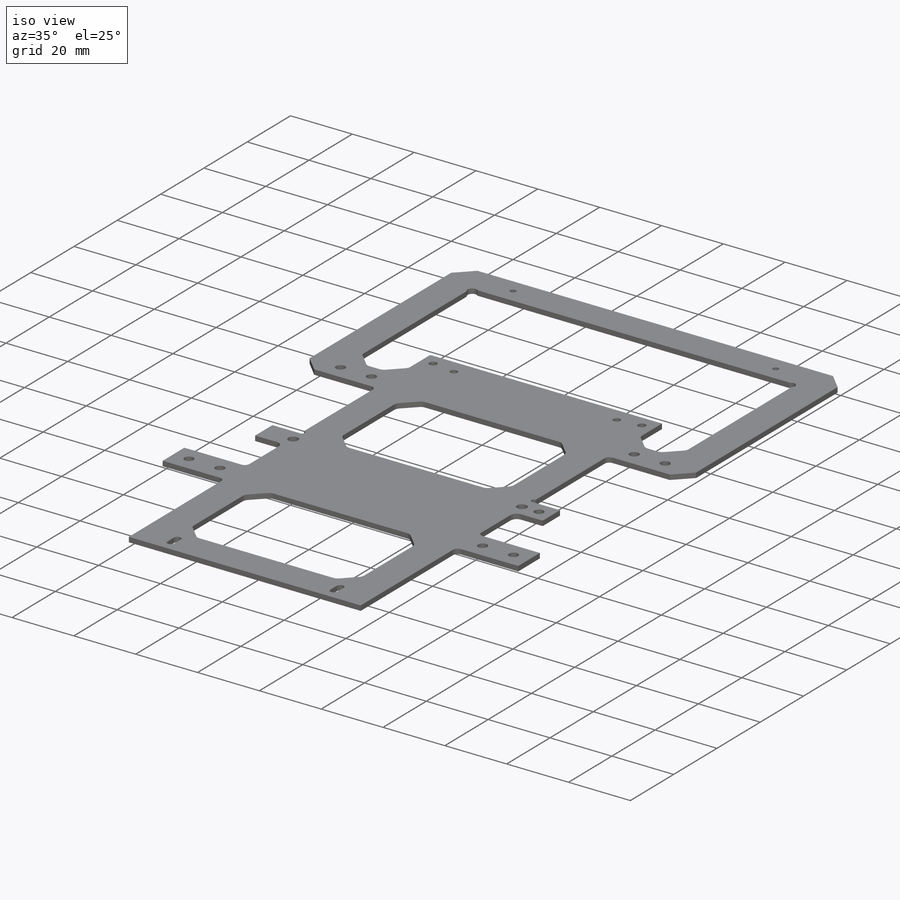
[diagram: iso view]
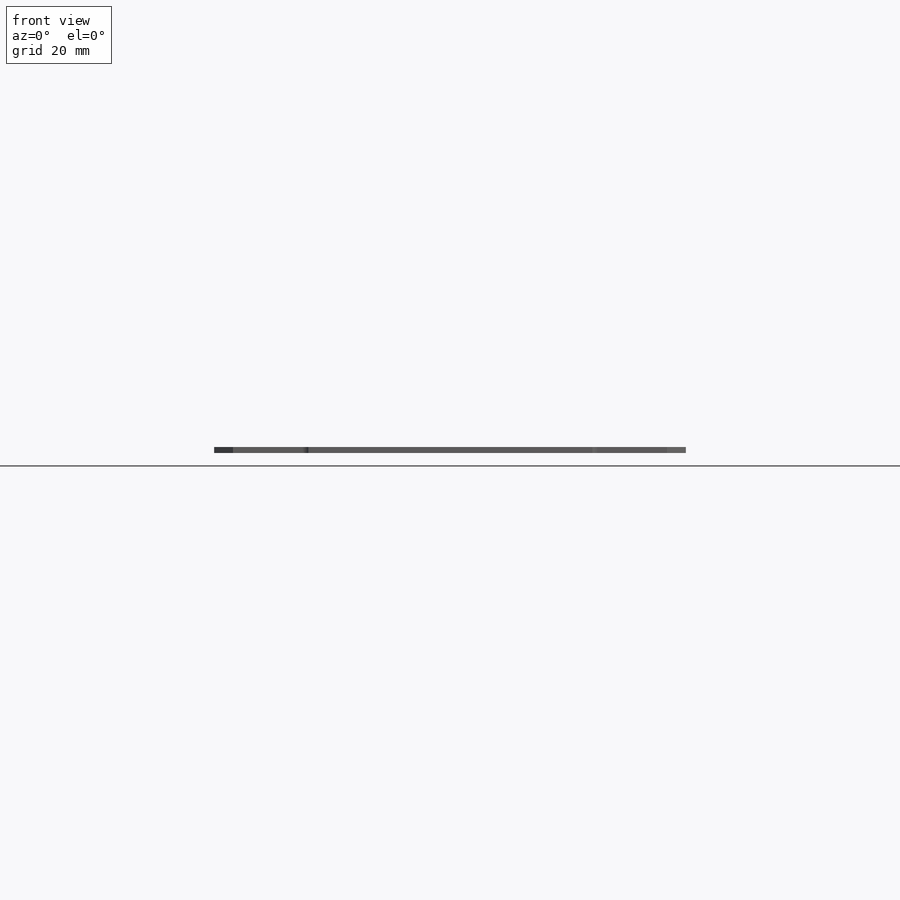
[diagram: front view]
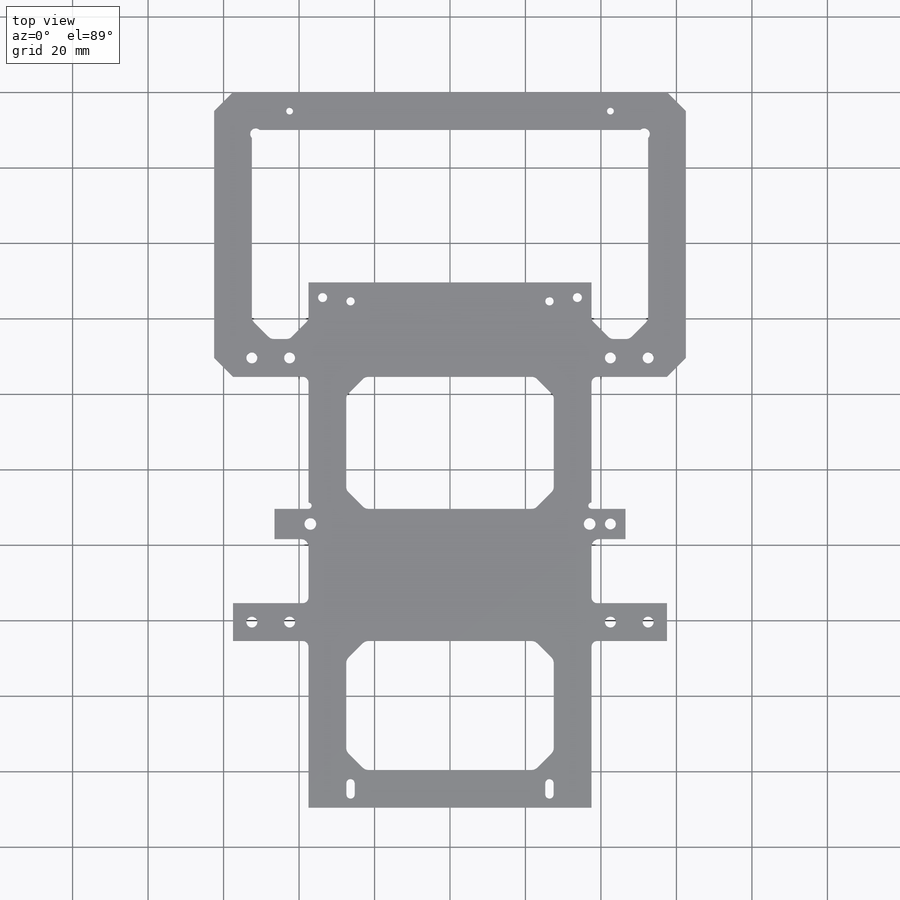
[diagram: top view]
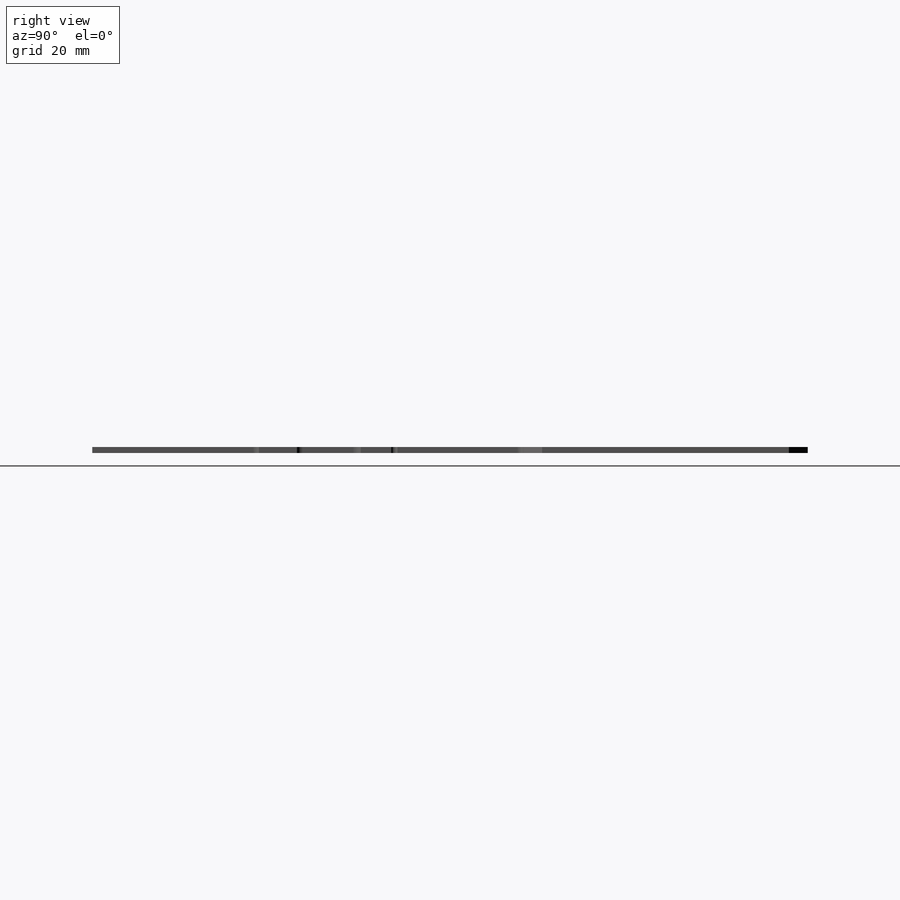
[diagram: right view]
SOLIDWORKS PART (.sldprt)
format: sldprt  version: not decoded by parser v0  size: 727,552 bytes
history: native  units: mm
features: sketch x16, extrude x7, cut_extrude x5, mirror x3, fillet x3, hole x2, chamfer x2, material x1 (+12 scaffold rows collapsed)
feature tree (51):
  scaffold x12  (default folders/planes/origin — collapsed)
  material  "Hexcel AS4C (3000 Filaments)"
  sketch  "Sketch1"  dims[c1.D2=2.2mm c1.D7=2.2mm c1.D8=2.2mm c2.D2=83.4mm c2.D3=65.0mm c2.D4=129.2mm c2.D5=5.0mm c2.D6=5.0mm c3.D3=65.0mm c3.D4=129.2mm c3.D7=52.7mm c3.D1=10.0mm]
  extrude  "Boss-Extrude1"  Depth=0.8mm
  sketch  "Sketch2"  dims[D1=10.0mm D2=20.0mm D3=80.0mm D4=15.0mm]
  extrude  "Boss-Extrude2"  [1 undecoded]
  sketch  "Sketch6"  dims[c1.D3=10.0mm c1.D1=125.0mm c1.D2=120.0mm c2.D3=10.0mm c2.D4=7.0mm]
  extrude  "Boss-Extrude4"  [1 undecoded]
  hole  "M2.5 Clearance Hole1"  Diameter=2.9mm Depth=11.5mm
  sketch  "Sketch4"  dims[c1.D1=5.0mm c1.D2=5.0mm c1.D3=5.0mm c2.D1=5.0mm c2.D2=10.0mm c2.D3=10.0mm]
  sketch  "Sketch3"  dims[hole-wizard template sketch: 47 standard entries collapsed; hole parameters kept: c15.Hole Depth=11.5mm c15.D3=~14.816244mm c15.Drill Angle=180.0deg]
  mirror  "Mirror1"
  fillet  "Fillet1"  Radius=1.5mm
  sketch  "Sketch9"  dims[D1=3.0mm]
  cut_extrude  "Cut-Extrude2"  Depth=10mm
  mirror  "Mirror2"
  sketch  "Sketch10"  dims[D1=10.0mm]
  extrude  "Boss-Extrude5"  [1 undecoded]
  sketch  "Sketch11"  dims[c1.D1=45.0mm c1.D2=27.0mm c1.D3=35.0mm c2.D1=9.0mm]
  extrude  "Boss-Extrude6"  [1 undecoded]
  sketch  "Sketch12"
  extrude  "Boss-Extrude7"  [1 undecoded]
  fillet  "Fillet3"  Radius=2mm
  chamfer  "Chamfer1"  Distance=5mm Angle=45deg
  sketch  "Sketch13"  dims[D1=3.0mm]
  cut_extrude  "Cut-Extrude3"  Depth=10mm
  sketch  "Sketch15"  dims[D1=3.1mm]
  cut_extrude  "Cut-Extrude4"  Depth=10mm
  mirror  "Mirror3"
  chamfer  "Chamfer2"  Distance=5mm Angle=45deg
  fillet  "Fillet4"  Radius=2mm
  sketch  "Sketch17"
  extrude  "Boss-Extrude8"  [1 undecoded]
  sketch  "Sketch18"  dims[D1=1.7mm]
  cut_extrude  "Cut-Extrude5"  Depth=10mm
  hole  "M2 Clearance Hole1"  Diameter=2.4mm Depth=10mm
  sketch  "Sketch20"
  sketch  "Sketch19"  dims[hole-wizard template sketch: 47 standard entries collapsed; hole parameters kept: c15.Hole Depth=10.0mm c15.D3=~14.816244mm c15.Drill Angle=180.0deg]
  sketch  "Esquisse1"  dims[D5=1.8mm D6=1.8mm D1=20.0mm D2=5.0mm D3=20.0mm D4=5.0mm]
  cut_extrude  "Enlèv. mat.-Extru.1"  Depth=10mm
decode coverage: 26 of 38 modeling features carry decoded parameters
note: ~ marks probable driven/reference dimensions
note: 6 parameter values undecoded
summary: no parameter record found for 6 features
note: suppression state not decoded; provenance and decode notes live in map.json
